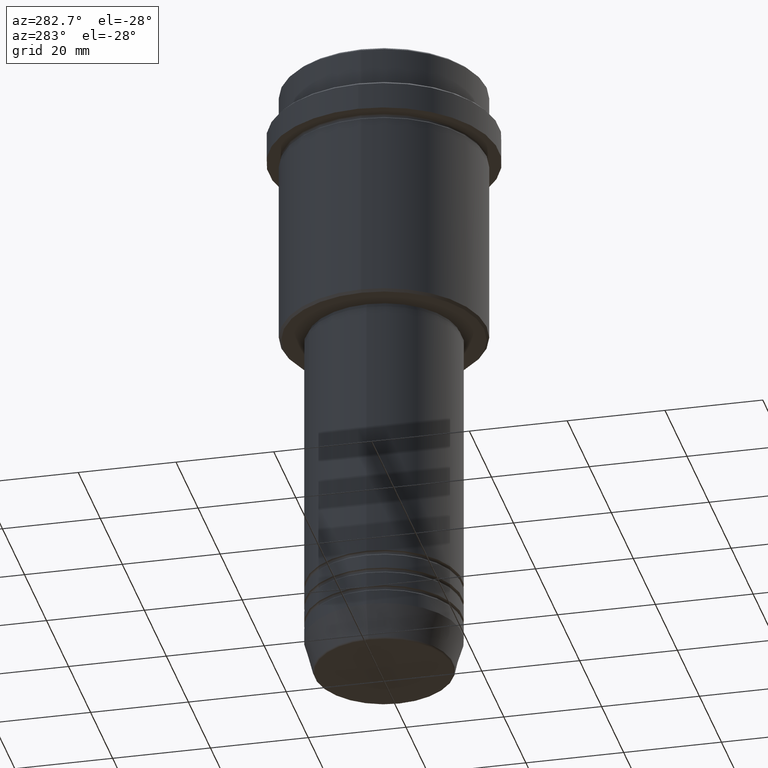
[diagram: clean part render]
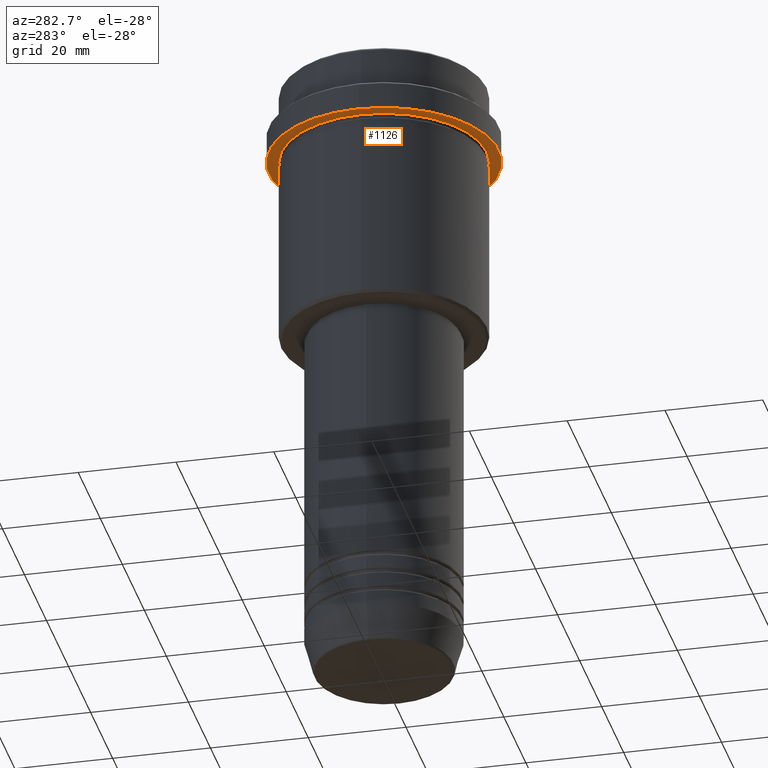
[diagram: same view with one face highlighted and labeled with its STEP entity id]
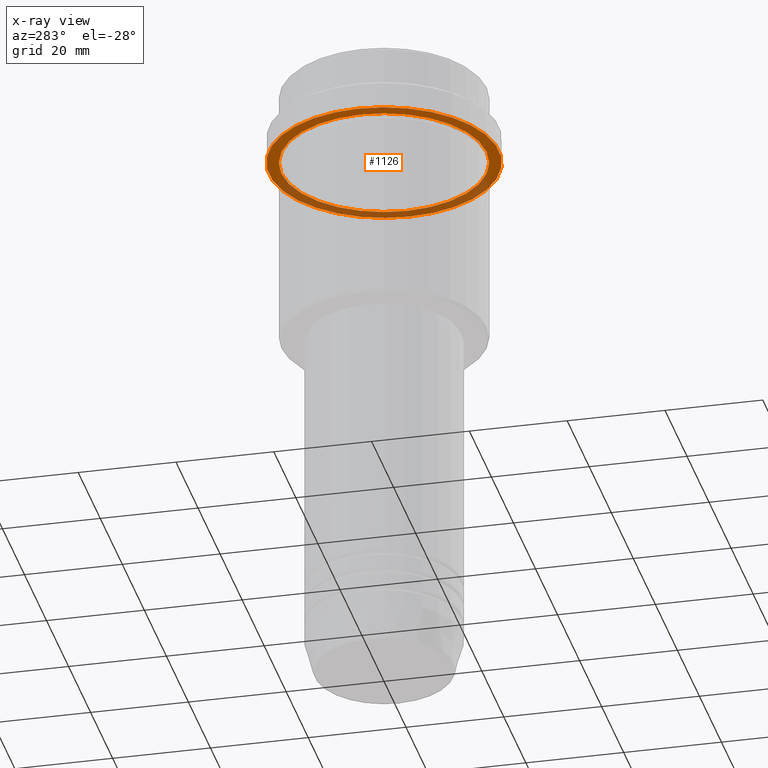
[diagram: x-ray of the same camera — body ghosted, the highlighted face saturated]
A machine part, auxiliary view. The second image highlights one B-rep face of the part: STEP entity #1126.
The next image is the same camera in x-ray: the body ghosted, the highlighted face saturated — about 38% of this face is hidden behind the body in this view.
In plain terms, the highlighted planar face has unit normal (0, 0, -1).
Its self-contained STEP definition (entity closure, byte-faithful):
#1 = DIRECTION ( 'NONE',  ( -0.000000000000000000, -0.000000000000000000, 1.000000000000000000 ) ) ;
#7 = AXIS2_PLACEMENT_3D ( 'NONE', #152, #443, #1320 ) ;
#17 = DIRECTION ( 'NONE',  ( 1.000000000000000000, 0.000000000000000000, 0.000000000000000000 ) ) ;
#62 = VERTEX_POINT ( 'NONE', #1171 ) ;
#127 = CIRCLE ( 'NONE', #1304, 23.50000000000000355 ) ;
#139 = CARTESIAN_POINT ( 'NONE',  ( 23.50000000000000355, 0.000000000000000000, -15.00000000000000178 ) ) ;
#152 = CARTESIAN_POINT ( 'NONE',  ( 0.000000000000000000, 0.000000000000000000, -15.00000000000000178 ) ) ;
#223 = DIRECTION ( 'NONE',  ( -1.000000000000000000, 0.000000000000000000, 0.000000000000000000 ) ) ;
#246 = ORIENTED_EDGE ( 'NONE', *, *, #846, .F. ) ;
#261 = AXIS2_PLACEMENT_3D ( 'NONE', #425, #1, #223 ) ;
#400 = EDGE_CURVE ( 'NONE', #502, #1344, #127, .T. ) ;
#425 = CARTESIAN_POINT ( 'NONE',  ( 0.000000000000000000, 0.000000000000000000, -15.00000000000000178 ) ) ;
#443 = DIRECTION ( 'NONE',  ( -0.000000000000000000, -0.000000000000000000, 1.000000000000000000 ) ) ;
#486 = CARTESIAN_POINT ( 'NONE',  ( -23.50000000000000711, 2.877919977996281109E-15, -15.00000000000000178 ) ) ;
#502 = VERTEX_POINT ( 'NONE', #486 ) ;
#545 = EDGE_CURVE ( 'NONE', #62, #1391, #1001, .T. ) ;
#662 = DIRECTION ( 'NONE',  ( -1.000000000000000000, 0.000000000000000000, -0.000000000000000000 ) ) ;
#678 = EDGE_CURVE ( 'NONE', #1391, #62, #864, .T. ) ;
#736 = FACE_OUTER_BOUND ( 'NONE', #1232, .T. ) ;
#766 = CARTESIAN_POINT ( 'NONE',  ( 0.000000000000000000, 23.50000000000000355, -15.00000000000000178 ) ) ;
#768 = DIRECTION ( 'NONE',  ( -0.000000000000000000, -0.000000000000000000, 1.000000000000000000 ) ) ;
#801 = AXIS2_PLACEMENT_3D ( 'NONE', #766, #999, #662 ) ;
#820 = AXIS2_PLACEMENT_3D ( 'NONE', #1225, #991, #1103 ) ;
#845 = EDGE_LOOP ( 'NONE', ( #1080, #1259 ) ) ;
#846 = EDGE_CURVE ( 'NONE', #1344, #502, #907, .T. ) ;
#864 = CIRCLE ( 'NONE', #261, 20.99999999999999289 ) ;
#868 = CARTESIAN_POINT ( 'NONE',  ( 0.000000000000000000, 0.000000000000000000, -15.00000000000000178 ) ) ;
#907 = CIRCLE ( 'NONE', #820, 23.50000000000000355 ) ;
#922 = ORIENTED_EDGE ( 'NONE', *, *, #400, .F. ) ;
#991 = DIRECTION ( 'NONE',  ( -0.000000000000000000, -0.000000000000000000, 1.000000000000000000 ) ) ;
#999 = DIRECTION ( 'NONE',  ( 0.000000000000000000, 0.000000000000000000, -1.000000000000000000 ) ) ;
#1001 = CIRCLE ( 'NONE', #7, 20.99999999999999289 ) ;
#1080 = ORIENTED_EDGE ( 'NONE', *, *, #678, .T. ) ;
#1103 = DIRECTION ( 'NONE',  ( 1.000000000000000000, 0.000000000000000000, 0.000000000000000000 ) ) ;
#1116 = PLANE ( 'NONE',  #801 ) ;
#1125 = CARTESIAN_POINT ( 'NONE',  ( -20.99999999999999289, 0.000000000000000000, -15.00000000000000178 ) ) ;
#1126 = ADVANCED_FACE ( 'NONE', ( #1285, #736 ), #1116, .T. ) ;
#1171 = CARTESIAN_POINT ( 'NONE',  ( 20.99999999999999289, 2.571758278209440872E-15, -15.00000000000000178 ) ) ;
#1225 = CARTESIAN_POINT ( 'NONE',  ( 0.000000000000000000, 0.000000000000000000, -15.00000000000000178 ) ) ;
#1232 = EDGE_LOOP ( 'NONE', ( #246, #922 ) ) ;
#1259 = ORIENTED_EDGE ( 'NONE', *, *, #545, .T. ) ;
#1285 = FACE_BOUND ( 'NONE', #845, .T. ) ;
#1304 = AXIS2_PLACEMENT_3D ( 'NONE', #868, #768, #17 ) ;
#1320 = DIRECTION ( 'NONE',  ( -1.000000000000000000, 0.000000000000000000, 0.000000000000000000 ) ) ;
#1344 = VERTEX_POINT ( 'NONE', #139 ) ;
#1391 = VERTEX_POINT ( 'NONE', #1125 ) ;